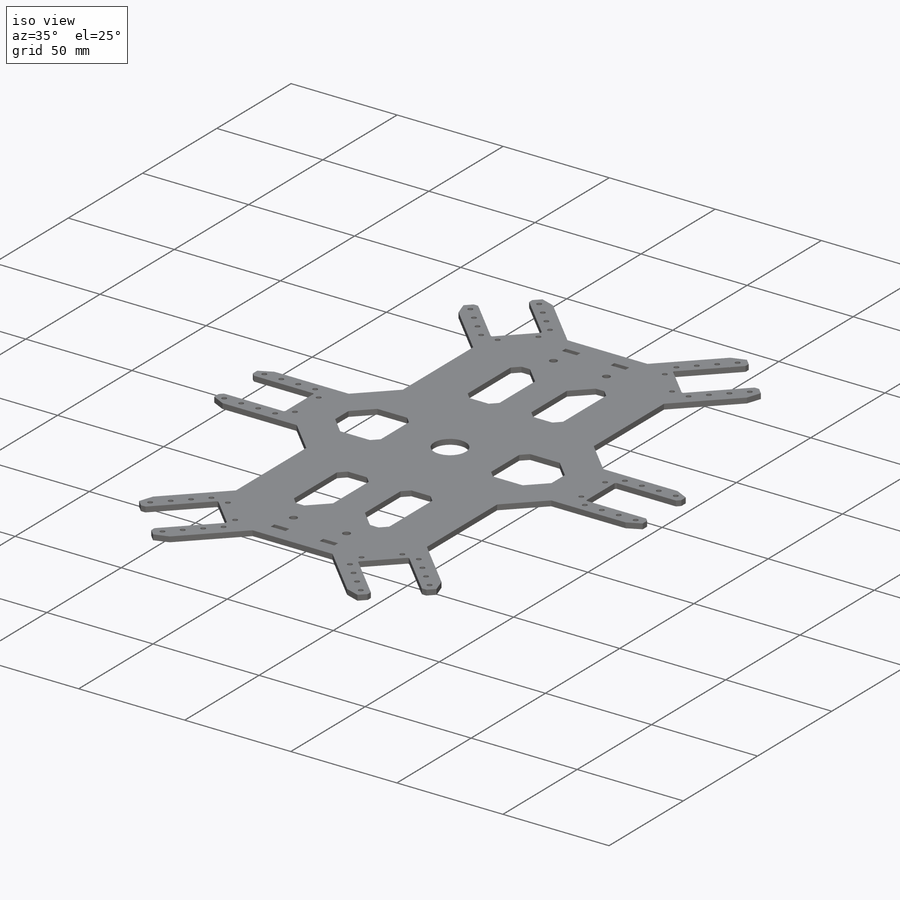
[diagram: iso view]
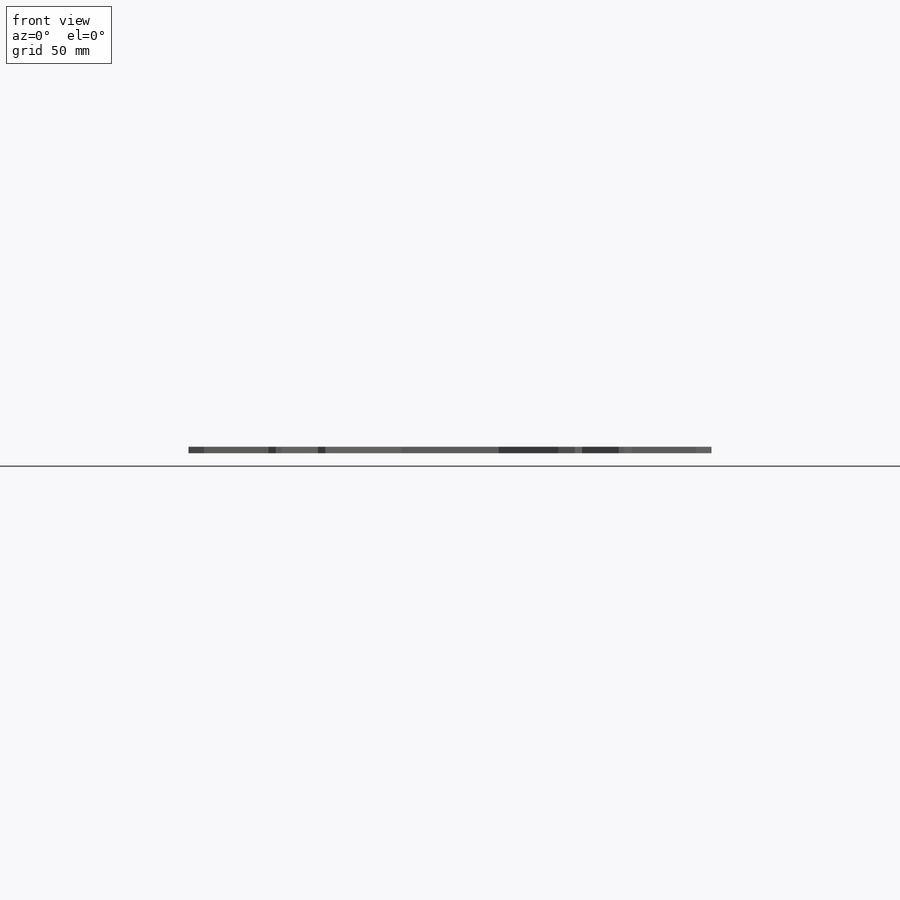
[diagram: front view]
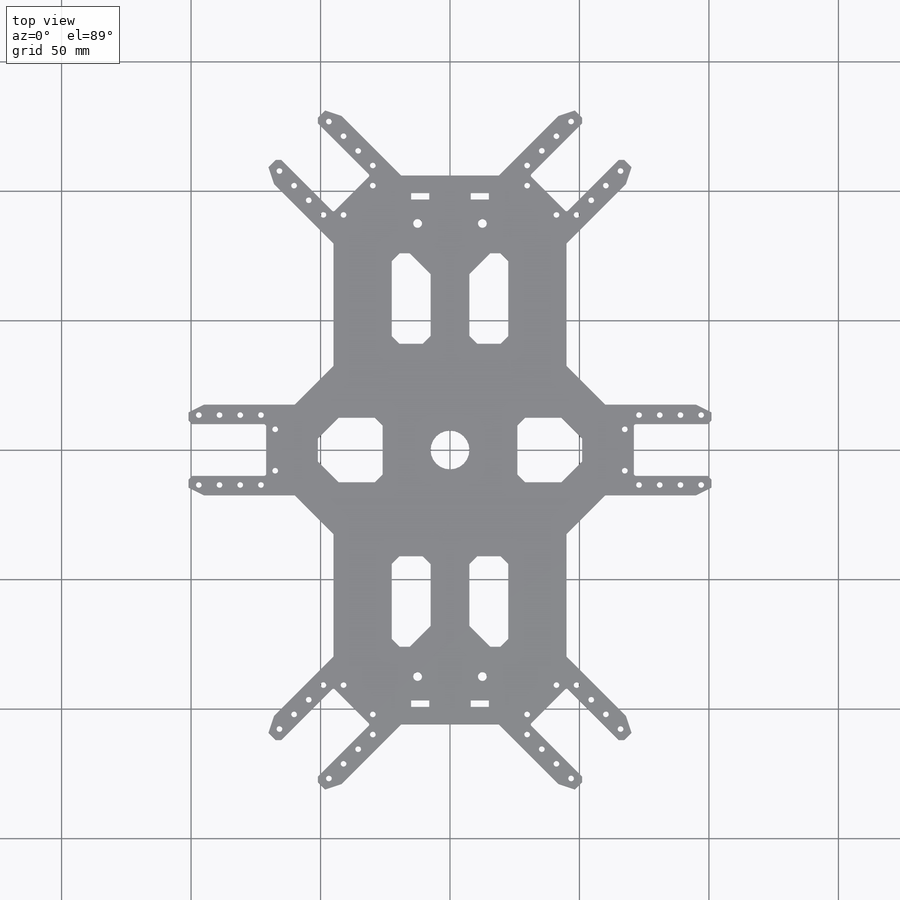
[diagram: top view]
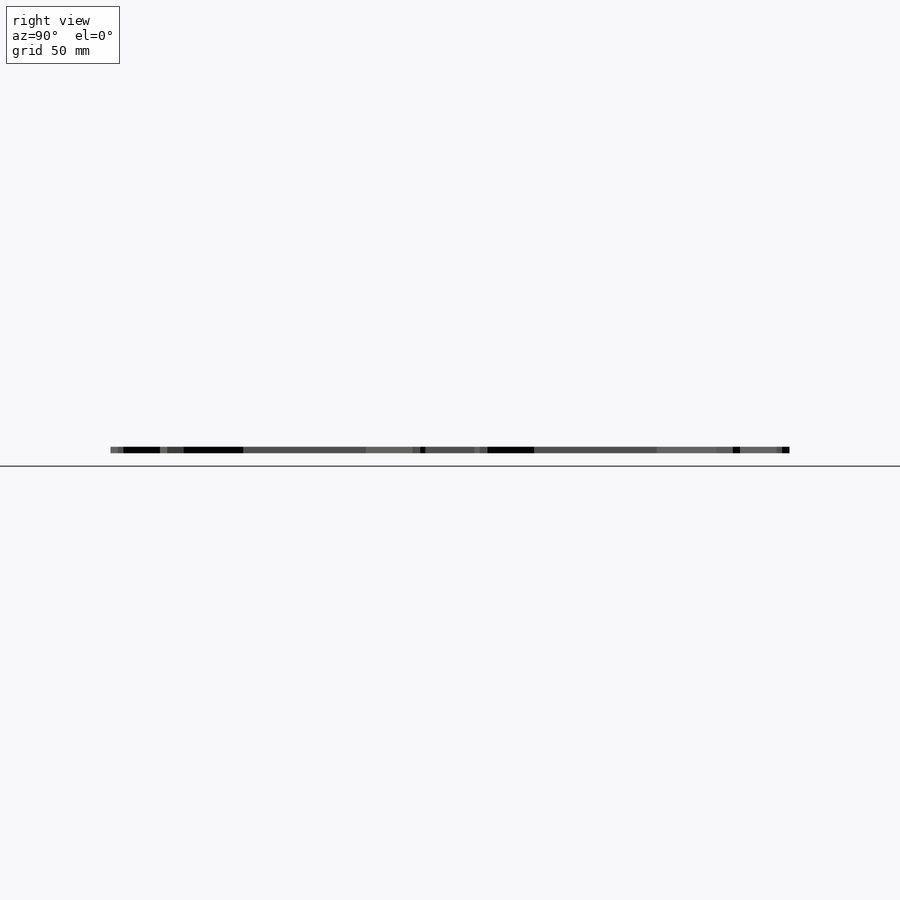
[diagram: right view]
SOLIDWORKS PART (.sldprt)
format: sldprt  version: not decoded by parser v0  size: 902,144 bytes
history: native  units: mm
features: sketch x8, mirror x4, chamfer x4, plane x3, cut_extrude x2, hole x2, material x1, extrude x1, fillet x1 (+10 scaffold rows collapsed)
feature tree (36):
  scaffold x10  (default folders/planes/origin — collapsed)
  material  "Material <not specified>"
  plane  "Plan de face"
  plane  "Plan de dessus"
  plane  "Plan de droite"
  sketch  "Esquisse1"  dims[c1.D1=35.0mm c1.D2=48.5mm c1.D3=~15.328638mm c2.D3=45.0deg c3.D3=37.0mm c3.D4=48.5mm c3.D5=48.5mm c4.D5=~50.754565deg c5.D5=~33.330764mm c6.D5=45.0deg c6.D6=~22.627417mm c7.D6=90.0deg c8.D6=90.0mm c8.D7=212.0mm c8.D8=65.0mm c8.D9=60.0mm c8.D10=15.0mm c8.D5=48.5mm c9.D5=135.0deg c9.D8=75.0mm c9.D9=55.43mm c9.D10=10.43mm]
  extrude  "Boss.-Extru.1"  Depth=2.5mm
  sketch  "Esquisse2"  dims[c1.D6=11.2mm c1.D8=22.4mm c1.D19=11.2mm c1.D22=22.4mm c1.D1=20.0mm c1.D2=49.0mm c1.D3=24.5mm c1.D4=6.0mm c1.D5=32.5mm c1.D7=10.0mm c1.D9=30.5mm c1.D10=2.5mm c1.D12=8.0mm c1.D14=27.0mm c1.D15=20.0mm c1.D16=49.0mm c1.D17=6.0mm c1.D18=24.5mm c1.D20=32.5mm c1.D21=10.0mm c1.D23=2.5mm c2.D10=3.5mm c2.D23=3.5mm c2.D24=~20.965305mm c2.D9=2.0mm c2.D25=~3.534695mm c3.D24=2.0mm c3.D17=8.0mm c3.D25=3.5mm c3.D26=2.0mm c3.D27=3.5mm c3.D28=2.0mm c3.D5=4.0mm c3.D6=4.0mm c3.D11=4.0 c3.D13=2.0 c3.D4=4.0]
  cut_extrude  "Enlèv. mat.-Extru.1"  [1 undecoded]
  hole  "Dégagement M21"  Diameter=2.2mm Depth=2.5mm
  sketch  "Esquisse4"
  sketch  "Esquisse3"  dims[hole-wizard template sketch: 59 standard entries collapsed; hole parameters kept: c18.Diamètre du perçage jusqu'au prochain=2.2mm c18.Profondeur du perçage jusqu'au prochain=2.5mm]
  mirror  "Symétrie3"
  mirror  "Symétrie4"
  chamfer  "Chanfrein1"  Distance=15mm Angle=45deg
  chamfer  "Chanfrein3"  Distance=1.5mm Angle=45deg
  chamfer  "Chanfrein4"  Distance=6mm
  chamfer  "Chanfrein5"  Distance=3mm
  mirror  "Symétrie5"
  mirror  "Symétrie6"
  fillet  "Congé1"  Radius=0.8mm
  sketch  "Esquisse5"  dims[D19=15.0mm D1=25.0mm D2=25.0mm D3=20.0mm D4=35.0mm D5=15.0mm D10=30.0mm D11=15.0mm D12=65.0mm D13=65.0mm D18=45.0mm D20=2.5mm D21=7.0mm D26=23.0mm D27=8.0mm D28=10.0mm D29=5.0mm D30=5.0mm D31=8.0mm D32=10.0mm D33=5.0mm D34=8.0mm]
  cut_extrude  "Enlèv. mat.-Extru.2"  [1 undecoded]
  sketch  "Esquisse6"  dims[D1=175.0mm D2=25.0mm]
  hole  "Dégagement M31"  Diameter=3.4mm Depth=2.5mm
  sketch  "Esquisse8"
  sketch  "Esquisse7"  dims[hole-wizard template sketch: 60 standard entries collapsed; hole parameters kept: c18.Profondeur du perçage jusqu'au prochain=2.5mm]
decode coverage: 14 of 22 modeling features carry decoded parameters
note: ~ marks probable driven/reference dimensions
note: 2 parameter values undecoded
note: suppression state not decoded; provenance and decode notes live in map.json
